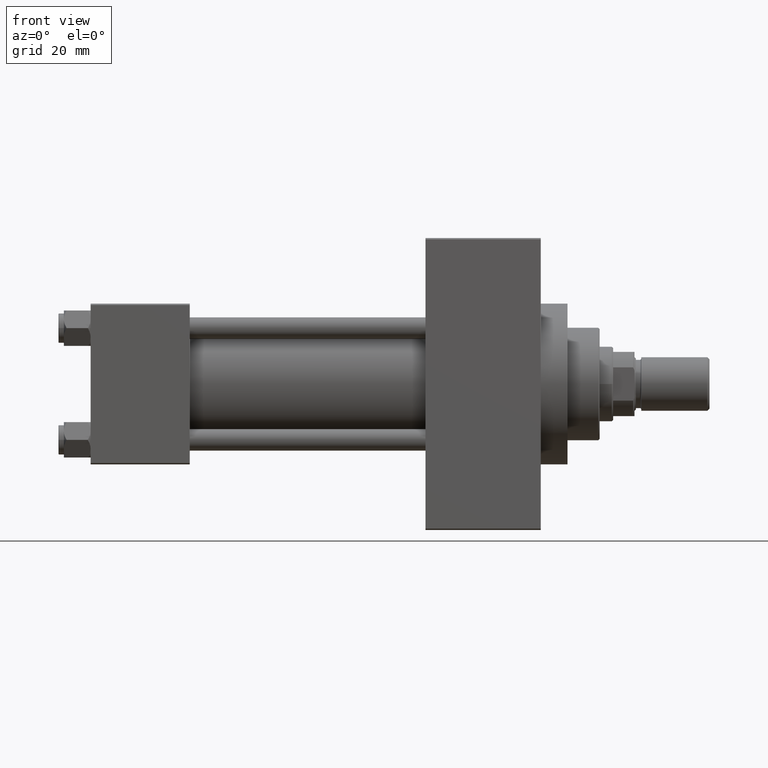
[diagram: clean part render]
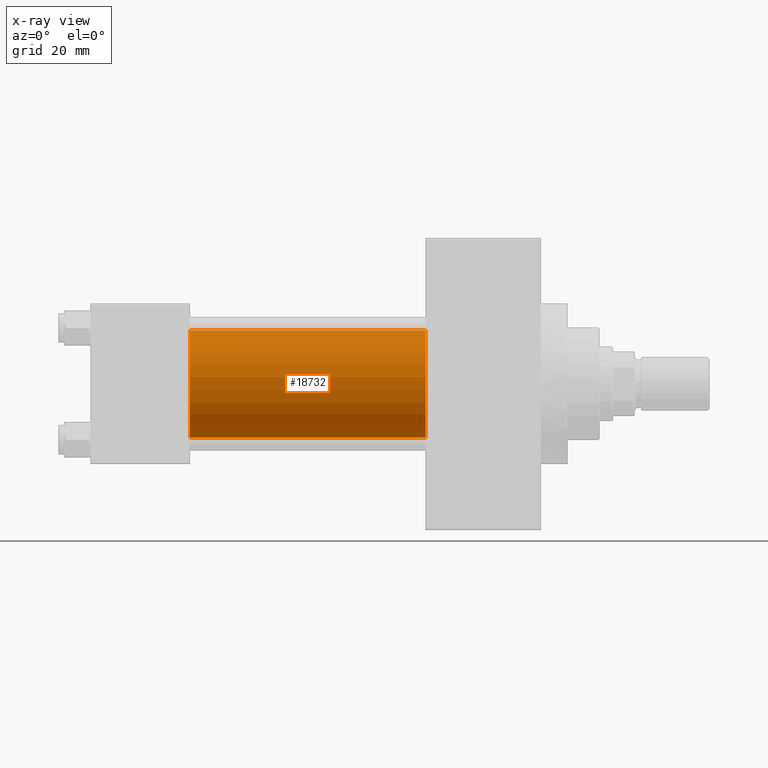
[diagram: x-ray — body ghosted, one internal face saturated and labeled with its STEP entity id]
A machine part, front view, then the same camera in x-ray: the body is ghosted and one INTERNAL B-rep face — a face not visible from any outside direction — is saturated and labeled: STEP entity #18732.
In plain terms, the highlighted cylindrical surface (partial cylindrical patch) has radius 20 mm, axis along (-1, -0, -0).
Its self-contained STEP definition (entity closure, byte-faithful):
#1400 = DIRECTION ( 'NONE',  ( 0.000000000000000000, 0.000000000000000000, -1.000000000000000000 ) ) ;
#3620 = AXIS2_PLACEMENT_3D ( 'NONE', #12674, #9059, #26445 ) ;
#4342 = VERTEX_POINT ( 'NONE', #17086 ) ;
#7373 = EDGE_CURVE ( 'NONE', #21915, #41623, #34417, .T. ) ;
#7533 = CARTESIAN_POINT ( 'NONE',  ( 37.00000000000000000, -2.602085213965210642E-15, 20.00000000000000000 ) ) ;
#9059 = DIRECTION ( 'NONE',  ( 1.000000000000000000, 0.000000000000000000, 0.000000000000000000 ) ) ;
#10860 = LINE ( 'NONE', #25810, #21708 ) ;
#11010 = AXIS2_PLACEMENT_3D ( 'NONE', #28489, #47065, #47321 ) ;
#12674 = CARTESIAN_POINT ( 'NONE',  ( 125.0000000000000000, -2.602085213965210642E-15, 0.000000000000000000 ) ) ;
#13162 = CARTESIAN_POINT ( 'NONE',  ( 125.0000000000000000, -2.602085213965210642E-15, 20.00000000000000000 ) ) ;
#13630 = CIRCLE ( 'NONE', #3620, 20.00000000000000000 ) ;
#15678 = VECTOR ( 'NONE', #24260, 1000.000000000000000 ) ;
#17061 = CARTESIAN_POINT ( 'NONE',  ( 37.00000000000000000, -2.602085213965210642E-15, 0.000000000000000000 ) ) ;
#17086 = CARTESIAN_POINT ( 'NONE',  ( 125.0000000000000000, -1.527916156705042519E-16, -20.00000000000000000 ) ) ;
#17638 = ORIENTED_EDGE ( 'NONE', *, *, #35408, .F. ) ;
#18732 = ADVANCED_FACE ( 'NONE', ( #35744 ), #39842, .F. ) ;
#21708 = VECTOR ( 'NONE', #33270, 1000.000000000000000 ) ;
#21915 = VERTEX_POINT ( 'NONE', #37514 ) ;
#23650 = CIRCLE ( 'NONE', #47515, 20.00000000000000000 ) ;
#24260 = DIRECTION ( 'NONE',  ( -1.000000000000000000, -0.000000000000000000, -0.000000000000000000 ) ) ;
#25810 = CARTESIAN_POINT ( 'NONE',  ( 125.0000000000000000, -1.527916156705042519E-16, -20.00000000000000000 ) ) ;
#26445 = DIRECTION ( 'NONE',  ( 0.000000000000000000, 0.000000000000000000, -1.000000000000000000 ) ) ;
#26624 = CARTESIAN_POINT ( 'NONE',  ( 37.00000000000000000, -1.527916156705042519E-16, -20.00000000000000000 ) ) ;
#28489 = CARTESIAN_POINT ( 'NONE',  ( 125.0000000000000000, -2.602085213965210642E-15, 0.000000000000000000 ) ) ;
#32045 = ORIENTED_EDGE ( 'NONE', *, *, #42705, .T. ) ;
#32687 = EDGE_CURVE ( 'NONE', #21915, #4342, #13630, .T. ) ;
#33270 = DIRECTION ( 'NONE',  ( -1.000000000000000000, -0.000000000000000000, -0.000000000000000000 ) ) ;
#33818 = ORIENTED_EDGE ( 'NONE', *, *, #7373, .F. ) ;
#34417 = LINE ( 'NONE', #13162, #15678 ) ;
#35168 = DIRECTION ( 'NONE',  ( 1.000000000000000000, 0.000000000000000000, 0.000000000000000000 ) ) ;
#35408 = EDGE_CURVE ( 'NONE', #41623, #38664, #23650, .T. ) ;
#35744 = FACE_OUTER_BOUND ( 'NONE', #35840, .T. ) ;
#35840 = EDGE_LOOP ( 'NONE', ( #40048, #32045, #17638, #33818 ) ) ;
#37514 = CARTESIAN_POINT ( 'NONE',  ( 125.0000000000000000, -2.602085213965210642E-15, 20.00000000000000000 ) ) ;
#38664 = VERTEX_POINT ( 'NONE', #26624 ) ;
#39842 = CYLINDRICAL_SURFACE ( 'NONE', #11010, 20.00000000000000000 ) ;
#40048 = ORIENTED_EDGE ( 'NONE', *, *, #32687, .T. ) ;
#41623 = VERTEX_POINT ( 'NONE', #7533 ) ;
#42705 = EDGE_CURVE ( 'NONE', #4342, #38664, #10860, .T. ) ;
#47065 = DIRECTION ( 'NONE',  ( -1.000000000000000000, -0.000000000000000000, -0.000000000000000000 ) ) ;
#47321 = DIRECTION ( 'NONE',  ( 0.000000000000000000, 0.000000000000000000, 1.000000000000000000 ) ) ;
#47515 = AXIS2_PLACEMENT_3D ( 'NONE', #17061, #35168, #1400 ) ;